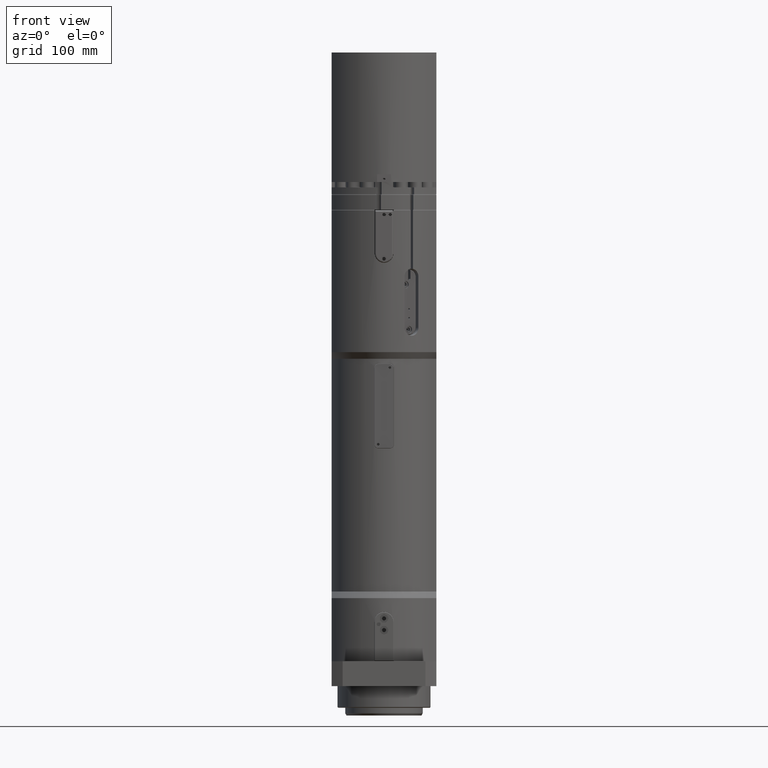
[diagram: clean part render]
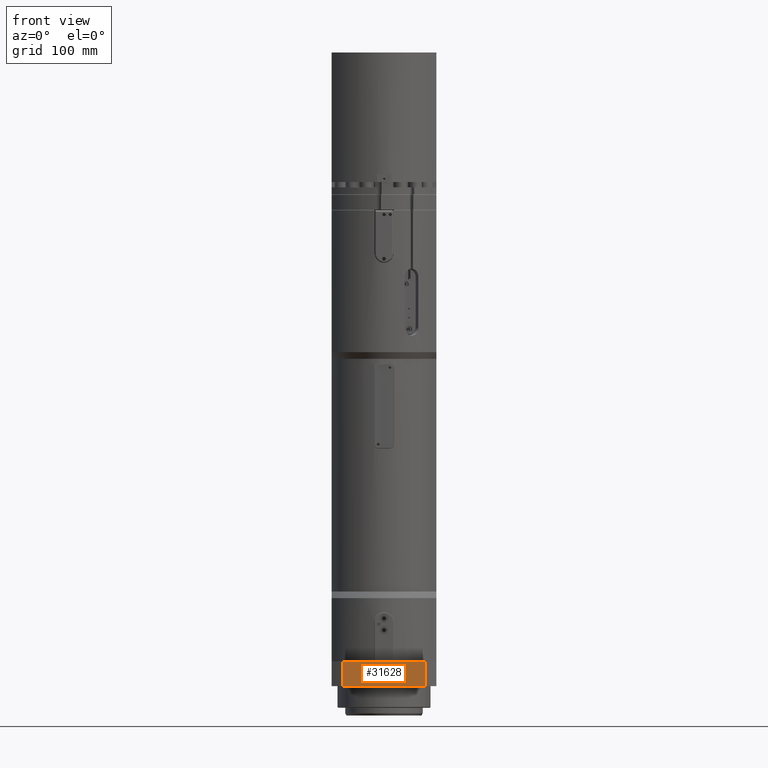
[diagram: same view with one face highlighted and labeled with its STEP entity id]
A machine part, front view. The second image highlights one B-rep face of the part: STEP entity #31628.
In plain terms, the highlighted planar face has unit normal (0, -1, 0).
Its self-contained STEP definition (entity closure, byte-faithful):
#1296=PLANE('',#34037);
#3437=LINE('',#57000,#6065);
#3444=LINE('',#57036,#6072);
#3456=LINE('',#57072,#6084);
#3457=LINE('',#57074,#6085);
#6065=VECTOR('',#40293,10.);
#6072=VECTOR('',#40328,10.);
#6084=VECTOR('',#40376,10.);
#6085=VECTOR('',#40379,10.);
#8429=FACE_OUTER_BOUND('',#10301,.T.);
#10301=EDGE_LOOP('',(#26118,#26119,#26120,#26121));
#14712=VERTEX_POINT('',#56997);
#14713=VERTEX_POINT('',#56999);
#14727=VERTEX_POINT('',#57033);
#14728=VERTEX_POINT('',#57035);
#18644=EDGE_CURVE('',#14712,#14713,#3437,.T.);
#18661=EDGE_CURVE('',#14727,#14728,#3444,.T.);
#18680=EDGE_CURVE('',#14727,#14713,#3456,.T.);
#18681=EDGE_CURVE('',#14728,#14712,#3457,.T.);
#26118=ORIENTED_EDGE('',*,*,#18661,.F.);
#26119=ORIENTED_EDGE('',*,*,#18680,.T.);
#26120=ORIENTED_EDGE('',*,*,#18644,.F.);
#26121=ORIENTED_EDGE('',*,*,#18681,.F.);
#31628=ADVANCED_FACE('',(#8429),#1296,.T.);
#34037=AXIS2_PLACEMENT_3D('',#57073,#40377,#40378);
#40293=DIRECTION('',(1.,0.,0.));
#40328=DIRECTION('',(-1.,0.,0.));
#40376=DIRECTION('',(0.,0.,1.));
#40377=DIRECTION('center_axis',(0.,-1.,0.));
#40378=DIRECTION('ref_axis',(1.,0.,0.));
#40379=DIRECTION('',(0.,0.,1.));
#56997=CARTESIAN_POINT('',(-53.3268225192539,-107.5,32.));
#56999=CARTESIAN_POINT('',(53.3268225192539,-107.5,32.));
#57000=CARTESIAN_POINT('',(53.3268225192539,-107.5,32.));
#57033=CARTESIAN_POINT('',(53.3268225192539,-107.5,0.));
#57035=CARTESIAN_POINT('',(-53.3268225192539,-107.5,0.));
#57036=CARTESIAN_POINT('',(53.3268225192539,-107.5,0.));
#57072=CARTESIAN_POINT('',(53.3268225192539,-107.5,0.));
#57073=CARTESIAN_POINT('Origin',(-53.3268225192539,-107.5,0.));
#57074=CARTESIAN_POINT('',(-53.3268225192539,-107.5,0.));